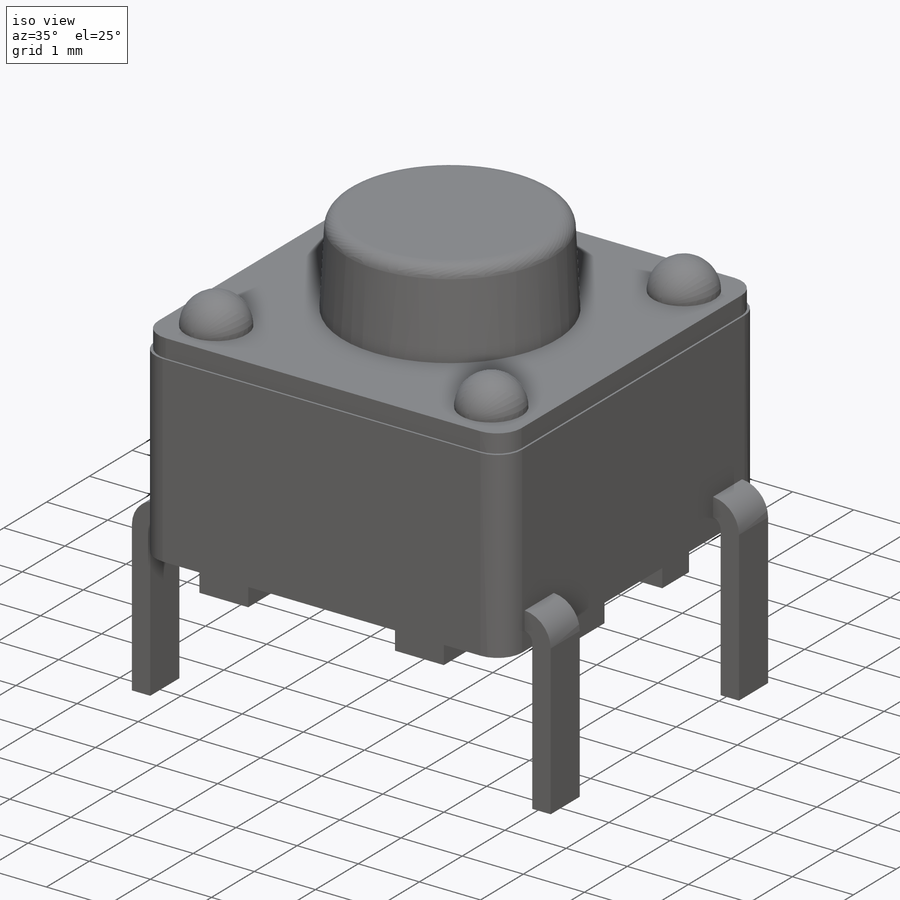
[diagram: iso view]
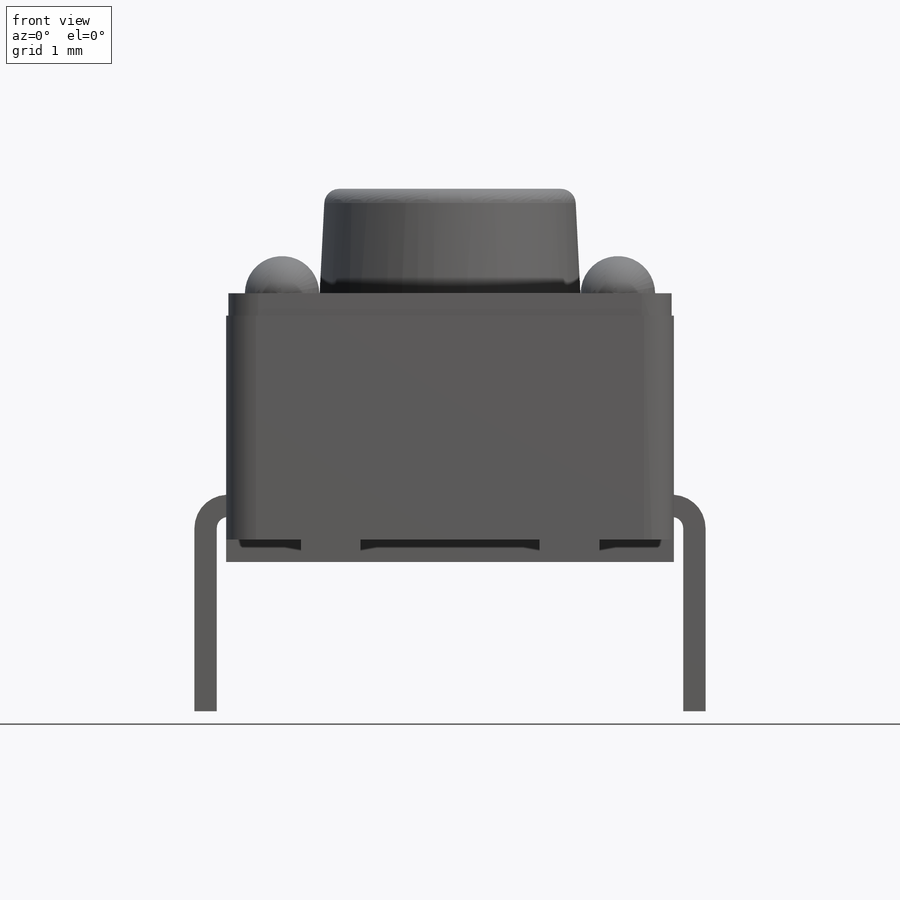
[diagram: front view]
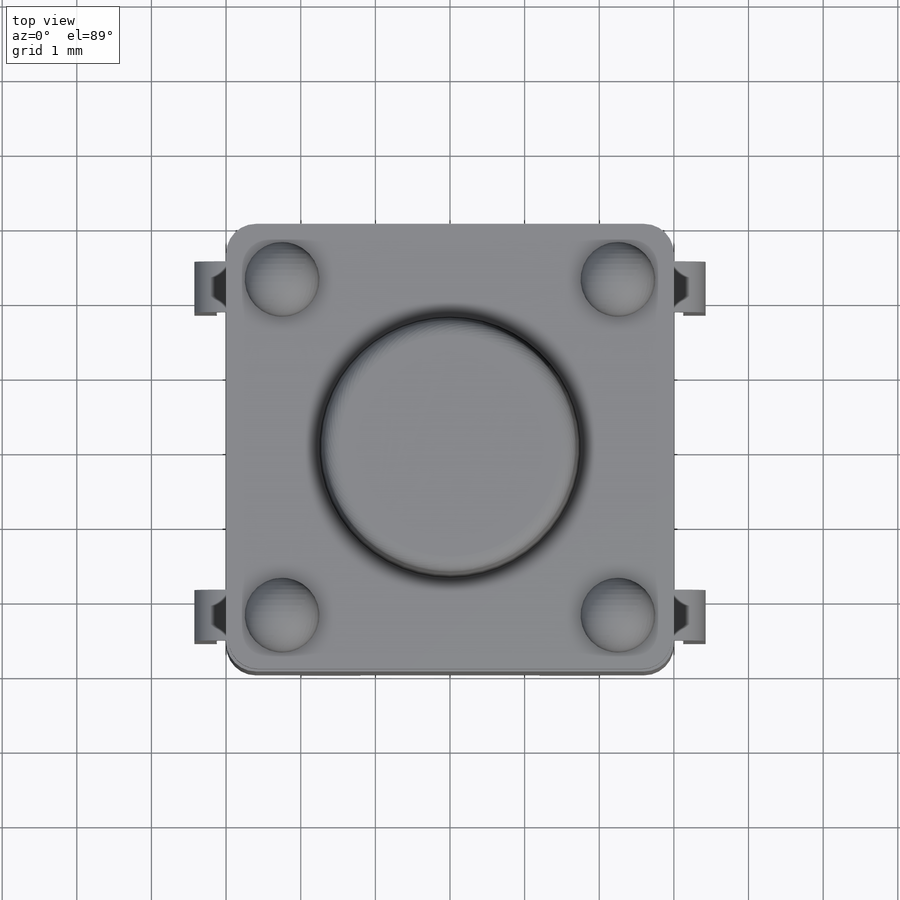
[diagram: top view]
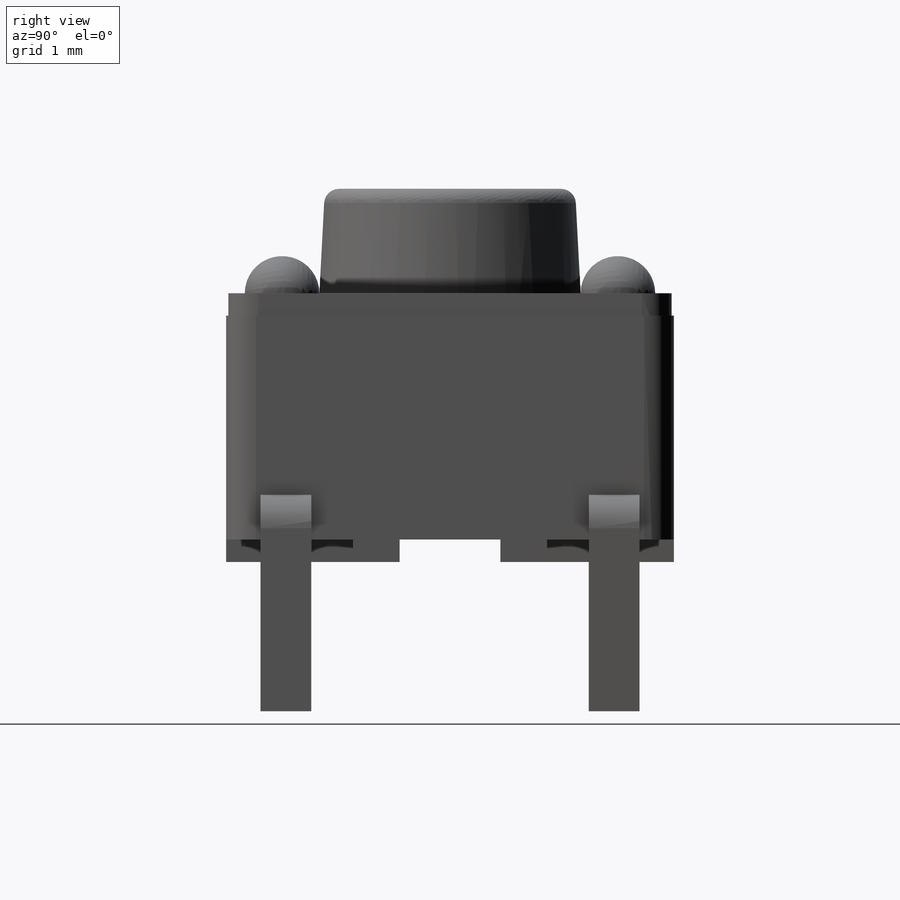
[diagram: right view]
SOLIDWORKS PART (.sldprt)
format: sldprt  version: not decoded by parser v0  size: 487,936 bytes
history: native  units: mm
features: sketch x9, extrude x6, fillet x6, cut_extrude x2, plane x2, material x1 (+12 scaffold rows collapsed)
feature tree (38):
  scaffold x12  (default folders/planes/origin — collapsed)
  material  "Material <not specified>"
  sketch  "Sketch1"  dims[D1=6.0mm D2=6.0mm D3=3.0mm D4=3.0mm]
  extrude  "Extrude1"  Depth=3.3mm
  sketch  "Sketch2"  dims[D1=0.0mm D2=0.03mm]
  extrude  "Extrude2"  Depth=0.3mm
  fillet  "Fillet2"  Radius=0.4mm
  fillet  "Fillet3"  Radius=0.4mm
  sketch  "Sketch4"  dims[D1=3.5mm]
  extrude  "Extrude3"  Depth=1.4mm
  fillet  "Fillet4"  Radius=0.2mm
  sketch  "Sketch5"  dims[D5=0.55mm D1=4.5mm D2=4.5mm D3=2.25mm D4=2.25mm]
  extrude  "Extrude4"  Depth=0.5mm
  fillet  "Fillet5"  Radius=0.5mm
  sketch  "Sketch6"  dims[D1=2.6mm D2=1.3mm D3=0.8mm D4=1.8mm D5=1.8mm D6=1.35mm D7=0.675mm]
  cut_extrude  "Cut-Extrude1"  Depth=0.3mm
  plane  "Plane1"  Offset=2.2mm
  plane  "Plane2"  Offset=2.2mm
  sketch  "Sketch7"  dims[c1.D1=0.3mm c1.D2=0.3mm c1.D3=7.6mm c1.D4=3.8mm c1.D5=0.3mm c1.D6=0.15mm c1.D7=2.0mm c2.D3=6.85mm c2.D2=0.3mm]
  extrude  "Extrude5"  Depth=0.34mm
  sketch  "Sketch8"  dims[D1=0.0mm]
  extrude  "Extrude6"  Depth=0.34mm
  fillet  "Fillet6"  Radius=0.15mm
  fillet  "Fillet7"  Radius=0.45mm
  sketch  "Sketch9"  dims[D1=0.8mm D2=0.4mm]
  cut_extrude  "Cut-Extrude2"  Depth=0.2mm
  sketch  "Component_Outline"
decode coverage: 22 of 23 modeling features carry decoded parameters
note: suppression state not decoded; provenance and decode notes live in map.json
